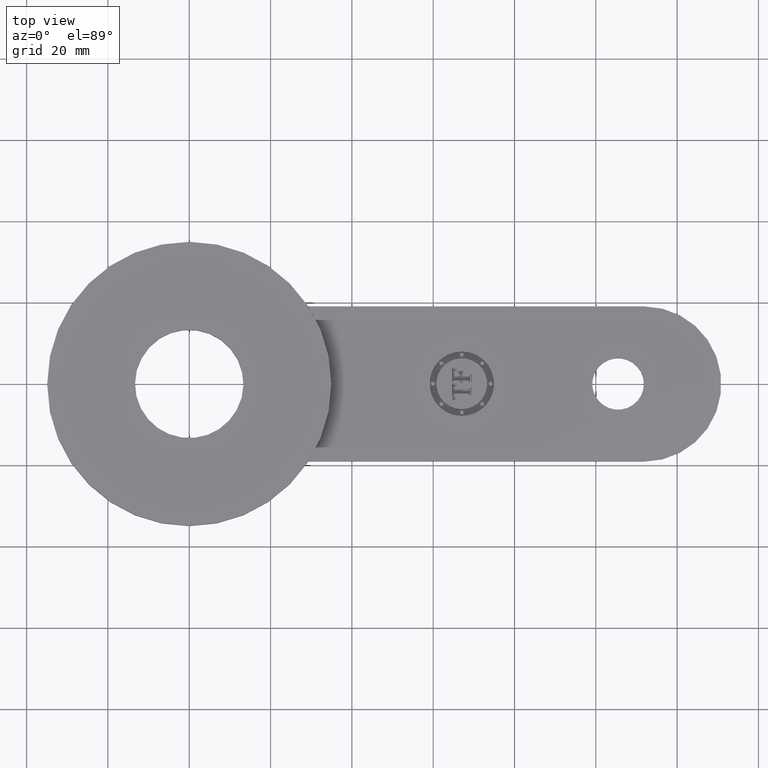
[diagram: clean part render]
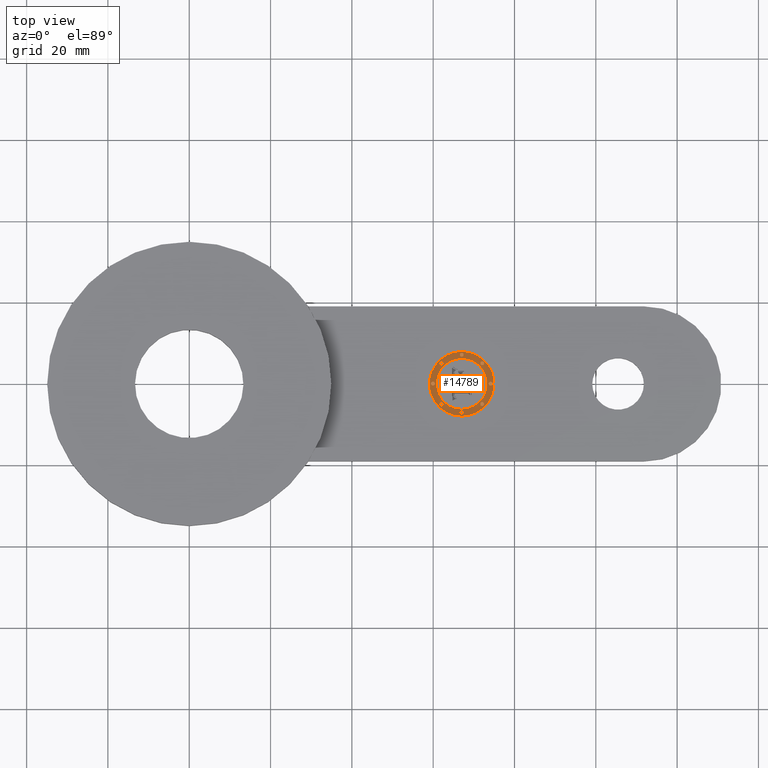
[diagram: same view with one face highlighted and labeled with its STEP entity id]
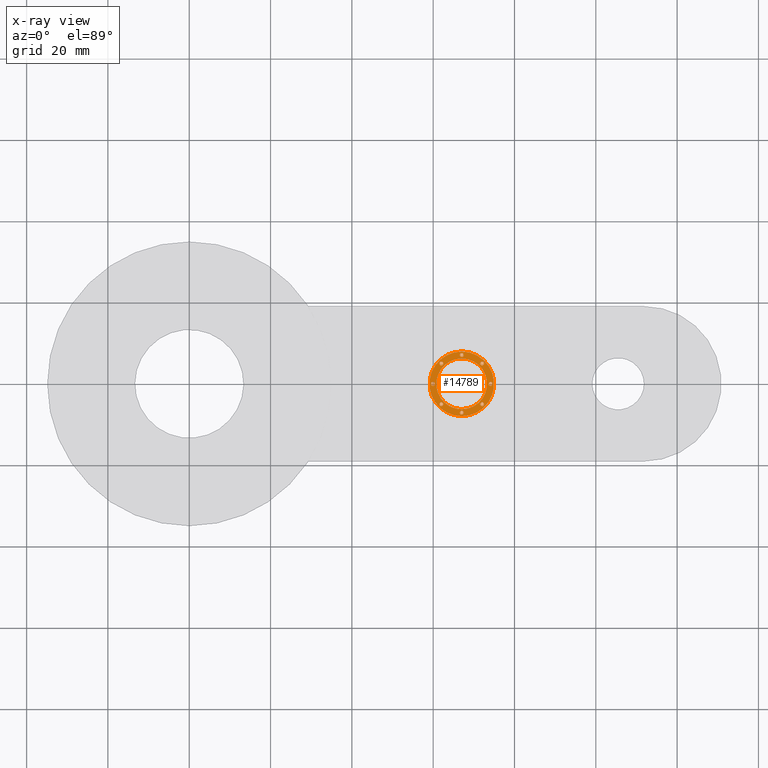
[diagram: x-ray of the same camera — body ghosted, the highlighted face saturated]
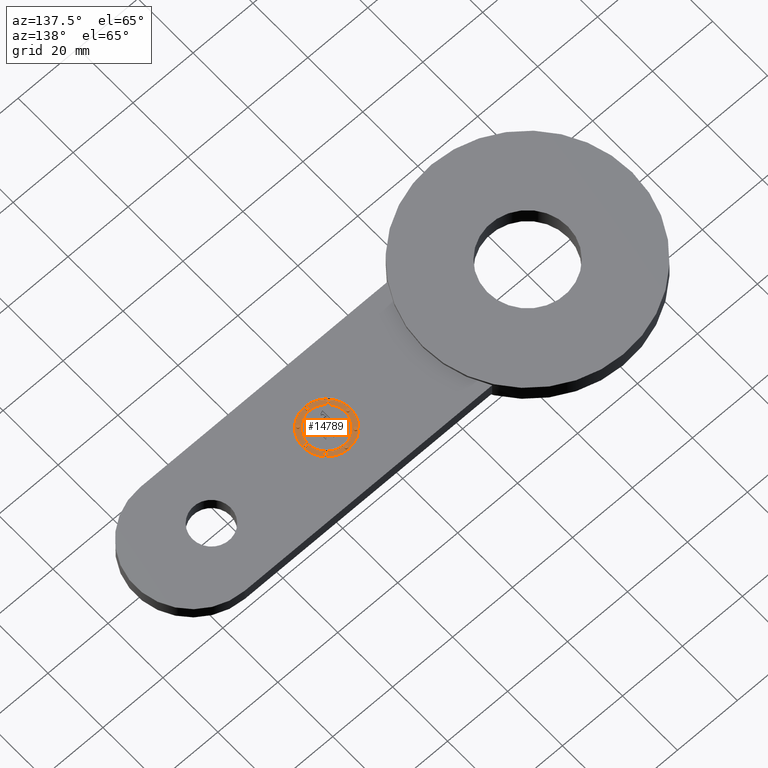
[diagram: same view with one face highlighted and labeled with its STEP entity id]
A machine part, top view. The second image highlights one B-rep face of the part: STEP entity #14789.
The next image is the same camera in x-ray: the body ghosted, the highlighted face saturated — about 0% of this face is hidden behind the body in this view.
A second angle (auxiliary view) of the same face is appended — the face is thin or edge-on in the first view.
In plain terms, the highlighted planar face has unit normal (0, 0, 1).
Its self-contained STEP definition (entity closure, byte-faithful):
#3436=AXIS2_PLACEMENT_3D('Plane Axis2P3D',#3433,#3434,#3435) ;
#14587=AXIS2_PLACEMENT_3D('Circle Axis2P3D',#14585,#14586,$) ;
#14606=AXIS2_PLACEMENT_3D('Circle Axis2P3D',#14604,#14605,$) ;
#14629=AXIS2_PLACEMENT_3D('Circle Axis2P3D',#14627,#14628,$) ;
#14638=AXIS2_PLACEMENT_3D('Circle Axis2P3D',#14636,#14637,$) ;
#14647=AXIS2_PLACEMENT_3D('Circle Axis2P3D',#14645,#14646,$) ;
#14656=AXIS2_PLACEMENT_3D('Circle Axis2P3D',#14654,#14655,$) ;
#14665=AXIS2_PLACEMENT_3D('Circle Axis2P3D',#14663,#14664,$) ;
#14674=AXIS2_PLACEMENT_3D('Circle Axis2P3D',#14672,#14673,$) ;
#14683=AXIS2_PLACEMENT_3D('Circle Axis2P3D',#14681,#14682,$) ;
#14692=AXIS2_PLACEMENT_3D('Circle Axis2P3D',#14690,#14691,$) ;
#14701=AXIS2_PLACEMENT_3D('Circle Axis2P3D',#14699,#14700,$) ;
#14710=AXIS2_PLACEMENT_3D('Circle Axis2P3D',#14708,#14709,$) ;
#14719=AXIS2_PLACEMENT_3D('Circle Axis2P3D',#14717,#14718,$) ;
#14728=AXIS2_PLACEMENT_3D('Circle Axis2P3D',#14726,#14727,$) ;
#14737=AXIS2_PLACEMENT_3D('Circle Axis2P3D',#14735,#14736,$) ;
#14746=AXIS2_PLACEMENT_3D('Circle Axis2P3D',#14744,#14745,$) ;
#14755=AXIS2_PLACEMENT_3D('Circle Axis2P3D',#14753,#14754,$) ;
#14764=AXIS2_PLACEMENT_3D('Circle Axis2P3D',#14762,#14763,$) ;
#14773=AXIS2_PLACEMENT_3D('Circle Axis2P3D',#14771,#14772,$) ;
#14782=AXIS2_PLACEMENT_3D('Circle Axis2P3D',#14780,#14781,$) ;
#3433=CARTESIAN_POINT('Axis2P3D Location',(0.,0.,0.0787500000003)) ;
#14575=CARTESIAN_POINT('Vertex',(2.63872152859,0.312499996876,0.0787500000003)) ;
#14582=CARTESIAN_POINT('Vertex',(2.63872152859,-0.312499996876,0.0787500000003)) ;
#14585=CARTESIAN_POINT('Axis2P3D Location',(2.63872152859,0.,0.0787500000003)) ;
#14604=CARTESIAN_POINT('Axis2P3D Location',(2.63872152859,0.,0.0787500000003)) ;
#14627=CARTESIAN_POINT('Axis2P3D Location',(2.63872152859,0.,0.0787500000003)) ;
#14631=CARTESIAN_POINT('Vertex',(2.63872152859,-0.246212118751,0.0787500000003)) ;
#14633=CARTESIAN_POINT('Vertex',(2.63872152859,0.246212118751,0.0787500000003)) ;
#14636=CARTESIAN_POINT('Axis2P3D Location',(2.63872152859,0.,0.0787500000003)) ;
#14645=CARTESIAN_POINT('Axis2P3D Location',(2.63872152859,-0.279356057814,0.0787500000003)) ;
#14649=CARTESIAN_POINT('Vertex',(2.63872152859,-0.260416664064,0.0787500000003)) ;
#14651=CARTESIAN_POINT('Vertex',(2.63872152859,-0.298295451564,0.0787500000003)) ;
#14654=CARTESIAN_POINT('Axis2P3D Location',(2.63872152859,-0.279356057814,0.0787500000003)) ;
#14663=CARTESIAN_POINT('Axis2P3D Location',(2.83625609144,-0.197534562846,0.0787500000003)) ;
#14667=CARTESIAN_POINT('Vertex',(2.83625609144,-0.178595169096,0.0787500000003)) ;
#14669=CARTESIAN_POINT('Vertex',(2.83625609144,-0.216473956596,0.0787500000003)) ;
#14672=CARTESIAN_POINT('Axis2P3D Location',(2.83625609144,-0.197534562846,0.0787500000003)) ;
#14681=CARTESIAN_POINT('Axis2P3D Location',(2.44118696575,-0.197534562846,0.0787500000003)) ;
#14685=CARTESIAN_POINT('Vertex',(2.44118696575,-0.178595169096,0.0787500000003)) ;
#14687=CARTESIAN_POINT('Vertex',(2.44118696575,-0.216473956596,0.0787500000003)) ;
#14690=CARTESIAN_POINT('Axis2P3D Location',(2.44118696575,-0.197534562846,0.0787500000003)) ;
#14699=CARTESIAN_POINT('Axis2P3D Location',(2.83625609144,0.197534562846,0.0787500000003)) ;
#14703=CARTESIAN_POINT('Vertex',(2.83625609144,0.178595169095,0.0787500000003)) ;
#14705=CARTESIAN_POINT('Vertex',(2.83625609144,0.216473956596,0.0787500000003)) ;
#14708=CARTESIAN_POINT('Axis2P3D Location',(2.83625609144,0.197534562846,0.0787500000003)) ;
#14717=CARTESIAN_POINT('Axis2P3D Location',(2.91807758641,6.15430716013E-015,0.0787500000003)) ;
#14721=CARTESIAN_POINT('Vertex',(2.91807758641,-0.0189393937501,0.0787500000003)) ;
#14723=CARTESIAN_POINT('Vertex',(2.91807758641,0.0189393937501,0.0787500000003)) ;
#14726=CARTESIAN_POINT('Axis2P3D Location',(2.91807758641,6.15430716013E-015,0.0787500000003)) ;
#14735=CARTESIAN_POINT('Axis2P3D Location',(2.44118696575,0.197534562846,0.0787500000003)) ;
#14739=CARTESIAN_POINT('Vertex',(2.44118696575,0.178595169095,0.0787500000003)) ;
#14741=CARTESIAN_POINT('Vertex',(2.44118696575,0.216473956596,0.0787500000003)) ;
#14744=CARTESIAN_POINT('Axis2P3D Location',(2.44118696575,0.197534562846,0.0787500000003)) ;
#14753=CARTESIAN_POINT('Axis2P3D Location',(2.63872152859,0.279356057814,0.0787500000003)) ;
#14757=CARTESIAN_POINT('Vertex',(2.63872152859,0.260416664064,0.0787500000003)) ;
#14759=CARTESIAN_POINT('Vertex',(2.63872152859,0.298295451564,0.0787500000003)) ;
#14762=CARTESIAN_POINT('Axis2P3D Location',(2.63872152859,0.279356057814,0.0787500000003)) ;
#14771=CARTESIAN_POINT('Axis2P3D Location',(2.35936547078,-2.5876064196E-015,0.0787500000003)) ;
#14775=CARTESIAN_POINT('Vertex',(2.35936547078,-0.0189393937501,0.0787500000003)) ;
#14777=CARTESIAN_POINT('Vertex',(2.35936547078,0.0189393937501,0.0787500000003)) ;
#14780=CARTESIAN_POINT('Axis2P3D Location',(2.35936547078,-2.5876064196E-015,0.0787500000003)) ;
#3434=DIRECTION('Axis2P3D Direction',(0.,0.,0.0393700787402)) ;
#3435=DIRECTION('Axis2P3D XDirection',(0.0393700787402,0.,0.)) ;
#14586=DIRECTION('Axis2P3D Direction',(0.,0.,0.0393700787402)) ;
#14605=DIRECTION('Axis2P3D Direction',(0.,0.,0.0393700787402)) ;
#14628=DIRECTION('Axis2P3D Direction',(0.,0.,0.0393700787402)) ;
#14637=DIRECTION('Axis2P3D Direction',(0.,0.,0.0393700787402)) ;
#14646=DIRECTION('Axis2P3D Direction',(0.,0.,0.0393700787402)) ;
#14655=DIRECTION('Axis2P3D Direction',(0.,0.,0.0393700787402)) ;
#14664=DIRECTION('Axis2P3D Direction',(0.,0.,0.0393700787402)) ;
#14673=DIRECTION('Axis2P3D Direction',(0.,0.,0.0393700787402)) ;
#14682=DIRECTION('Axis2P3D Direction',(0.,0.,0.0393700787402)) ;
#14691=DIRECTION('Axis2P3D Direction',(0.,0.,0.0393700787402)) ;
#14700=DIRECTION('Axis2P3D Direction',(0.,0.,0.0393700787402)) ;
#14709=DIRECTION('Axis2P3D Direction',(0.,0.,0.0393700787402)) ;
#14718=DIRECTION('Axis2P3D Direction',(0.,0.,0.0393700787402)) ;
#14727=DIRECTION('Axis2P3D Direction',(0.,0.,0.0393700787402)) ;
#14736=DIRECTION('Axis2P3D Direction',(0.,0.,0.0393700787402)) ;
#14745=DIRECTION('Axis2P3D Direction',(0.,0.,0.0393700787402)) ;
#14754=DIRECTION('Axis2P3D Direction',(0.,0.,0.0393700787402)) ;
#14763=DIRECTION('Axis2P3D Direction',(0.,0.,0.0393700787402)) ;
#14772=DIRECTION('Axis2P3D Direction',(0.,0.,0.0393700787402)) ;
#14781=DIRECTION('Axis2P3D Direction',(0.,0.,0.0393700787402)) ;
#14624=ORIENTED_EDGE('',*,*,#14589,.T.) ;
#14625=ORIENTED_EDGE('',*,*,#14608,.T.) ;
#14642=ORIENTED_EDGE('',*,*,#14635,.F.) ;
#14643=ORIENTED_EDGE('',*,*,#14640,.F.) ;
#14660=ORIENTED_EDGE('',*,*,#14653,.F.) ;
#14661=ORIENTED_EDGE('',*,*,#14658,.F.) ;
#14678=ORIENTED_EDGE('',*,*,#14671,.F.) ;
#14679=ORIENTED_EDGE('',*,*,#14676,.F.) ;
#14696=ORIENTED_EDGE('',*,*,#14689,.F.) ;
#14697=ORIENTED_EDGE('',*,*,#14694,.F.) ;
#14714=ORIENTED_EDGE('',*,*,#14707,.F.) ;
#14715=ORIENTED_EDGE('',*,*,#14712,.F.) ;
#14732=ORIENTED_EDGE('',*,*,#14725,.F.) ;
#14733=ORIENTED_EDGE('',*,*,#14730,.F.) ;
#14750=ORIENTED_EDGE('',*,*,#14743,.F.) ;
#14751=ORIENTED_EDGE('',*,*,#14748,.F.) ;
#14768=ORIENTED_EDGE('',*,*,#14761,.F.) ;
#14769=ORIENTED_EDGE('',*,*,#14766,.F.) ;
#14786=ORIENTED_EDGE('',*,*,#14779,.F.) ;
#14787=ORIENTED_EDGE('',*,*,#14784,.F.) ;
#14644=FACE_BOUND('',#14641,.T.) ;
#14662=FACE_BOUND('',#14659,.T.) ;
#14680=FACE_BOUND('',#14677,.T.) ;
#14698=FACE_BOUND('',#14695,.T.) ;
#14716=FACE_BOUND('',#14713,.T.) ;
#14734=FACE_BOUND('',#14731,.T.) ;
#14752=FACE_BOUND('',#14749,.T.) ;
#14770=FACE_BOUND('',#14767,.T.) ;
#14788=FACE_BOUND('',#14785,.T.) ;
#14789=ADVANCED_FACE('PartBody',(#14626,#14644,#14662,#14680,#14698,#14716,#14734,#14752,#14770,#14788),#3437,.T.) ;
#14588=CIRCLE('generated circle',#14587,0.312499996876) ;
#14607=CIRCLE('generated circle',#14606,0.312499996876) ;
#14630=CIRCLE('generated circle',#14629,0.246212118751) ;
#14639=CIRCLE('generated circle',#14638,0.246212118751) ;
#14648=CIRCLE('generated circle',#14647,0.0189393937501) ;
#14657=CIRCLE('generated circle',#14656,0.0189393937501) ;
#14666=CIRCLE('generated circle',#14665,0.0189393937501) ;
#14675=CIRCLE('generated circle',#14674,0.0189393937501) ;
#14684=CIRCLE('generated circle',#14683,0.0189393937501) ;
#14693=CIRCLE('generated circle',#14692,0.0189393937501) ;
#14702=CIRCLE('generated circle',#14701,0.0189393937501) ;
#14711=CIRCLE('generated circle',#14710,0.0189393937501) ;
#14720=CIRCLE('generated circle',#14719,0.0189393937501) ;
#14729=CIRCLE('generated circle',#14728,0.0189393937501) ;
#14738=CIRCLE('generated circle',#14737,0.0189393937501) ;
#14747=CIRCLE('generated circle',#14746,0.0189393937501) ;
#14756=CIRCLE('generated circle',#14755,0.0189393937501) ;
#14765=CIRCLE('generated circle',#14764,0.0189393937501) ;
#14774=CIRCLE('generated circle',#14773,0.0189393937501) ;
#14783=CIRCLE('generated circle',#14782,0.0189393937501) ;
#14589=EDGE_CURVE('',#14576,#14583,#14588,.T.) ;
#14608=EDGE_CURVE('',#14583,#14576,#14607,.T.) ;
#14635=EDGE_CURVE('',#14632,#14634,#14630,.T.) ;
#14640=EDGE_CURVE('',#14634,#14632,#14639,.T.) ;
#14653=EDGE_CURVE('',#14650,#14652,#14648,.T.) ;
#14658=EDGE_CURVE('',#14652,#14650,#14657,.T.) ;
#14671=EDGE_CURVE('',#14668,#14670,#14666,.T.) ;
#14676=EDGE_CURVE('',#14670,#14668,#14675,.T.) ;
#14689=EDGE_CURVE('',#14686,#14688,#14684,.T.) ;
#14694=EDGE_CURVE('',#14688,#14686,#14693,.T.) ;
#14707=EDGE_CURVE('',#14704,#14706,#14702,.T.) ;
#14712=EDGE_CURVE('',#14706,#14704,#14711,.T.) ;
#14725=EDGE_CURVE('',#14722,#14724,#14720,.T.) ;
#14730=EDGE_CURVE('',#14724,#14722,#14729,.T.) ;
#14743=EDGE_CURVE('',#14740,#14742,#14738,.T.) ;
#14748=EDGE_CURVE('',#14742,#14740,#14747,.T.) ;
#14761=EDGE_CURVE('',#14758,#14760,#14756,.T.) ;
#14766=EDGE_CURVE('',#14760,#14758,#14765,.T.) ;
#14779=EDGE_CURVE('',#14776,#14778,#14774,.T.) ;
#14784=EDGE_CURVE('',#14778,#14776,#14783,.T.) ;
#14623=EDGE_LOOP('',(#14624,#14625)) ;
#14641=EDGE_LOOP('',(#14642,#14643)) ;
#14659=EDGE_LOOP('',(#14660,#14661)) ;
#14677=EDGE_LOOP('',(#14678,#14679)) ;
#14695=EDGE_LOOP('',(#14696,#14697)) ;
#14713=EDGE_LOOP('',(#14714,#14715)) ;
#14731=EDGE_LOOP('',(#14732,#14733)) ;
#14749=EDGE_LOOP('',(#14750,#14751)) ;
#14767=EDGE_LOOP('',(#14768,#14769)) ;
#14785=EDGE_LOOP('',(#14786,#14787)) ;
#14626=FACE_OUTER_BOUND('',#14623,.T.) ;
#3437=PLANE('',#3436) ;
#14576=VERTEX_POINT('',#14575) ;
#14583=VERTEX_POINT('',#14582) ;
#14632=VERTEX_POINT('',#14631) ;
#14634=VERTEX_POINT('',#14633) ;
#14650=VERTEX_POINT('',#14649) ;
#14652=VERTEX_POINT('',#14651) ;
#14668=VERTEX_POINT('',#14667) ;
#14670=VERTEX_POINT('',#14669) ;
#14686=VERTEX_POINT('',#14685) ;
#14688=VERTEX_POINT('',#14687) ;
#14704=VERTEX_POINT('',#14703) ;
#14706=VERTEX_POINT('',#14705) ;
#14722=VERTEX_POINT('',#14721) ;
#14724=VERTEX_POINT('',#14723) ;
#14740=VERTEX_POINT('',#14739) ;
#14742=VERTEX_POINT('',#14741) ;
#14758=VERTEX_POINT('',#14757) ;
#14760=VERTEX_POINT('',#14759) ;
#14776=VERTEX_POINT('',#14775) ;
#14778=VERTEX_POINT('',#14777) ;